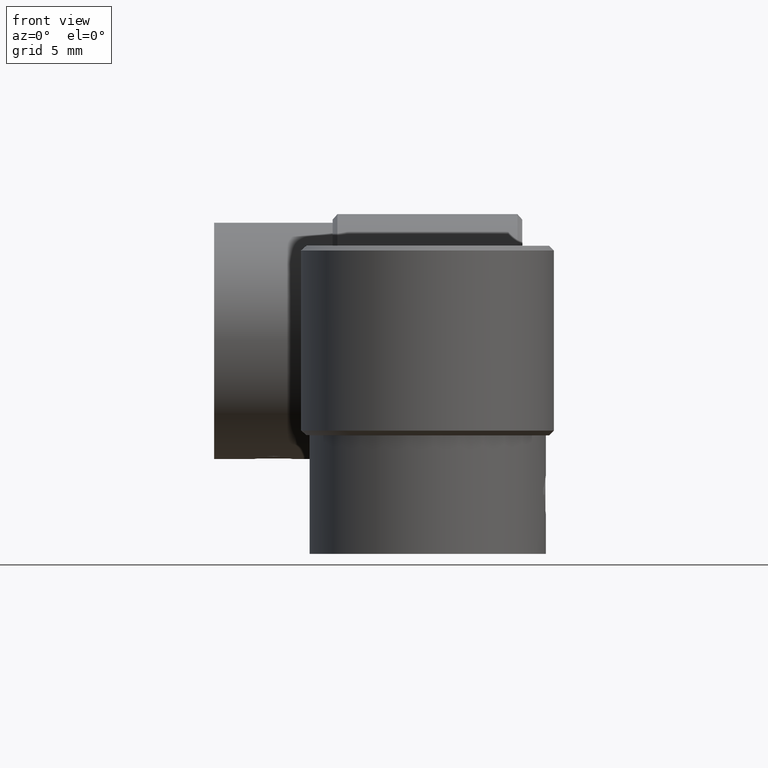
[diagram: clean part render]
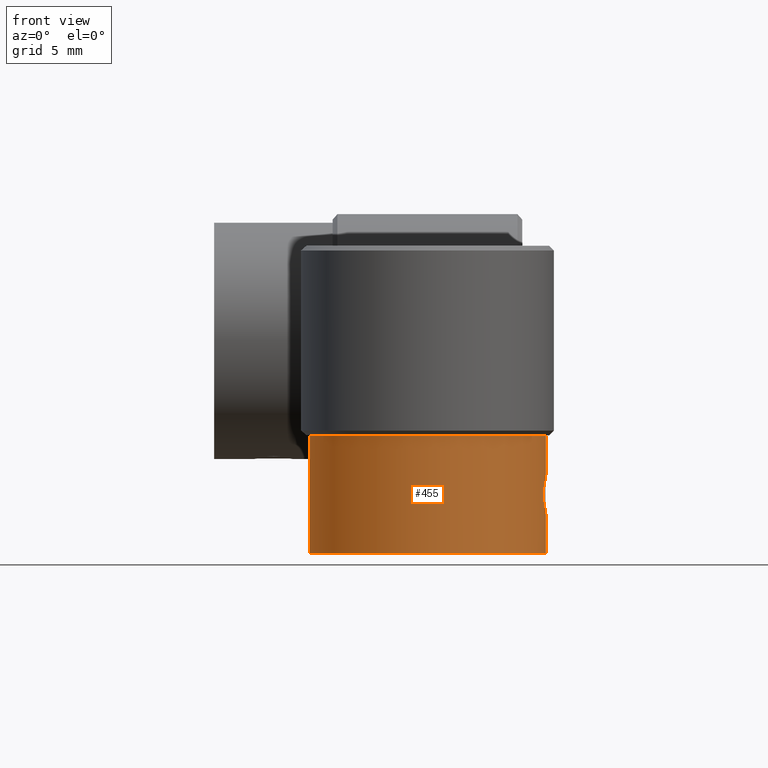
[diagram: same view with one face highlighted and labeled with its STEP entity id]
A machine part, front view. The second image highlights one B-rep face of the part: STEP entity #455.
In plain terms, the highlighted cylindrical surface (bore or boss wall) has radius 7.5 mm, axis along (-0, 0, -1).
Its self-contained STEP definition (entity closure, byte-faithful):
#455 = ADVANCED_FACE( '', ( #550, #551, #552, #553 ), #554, .T. );
#550 = FACE_BOUND( '', #794, .T. );
#551 = FACE_OUTER_BOUND( '', #795, .T. );
#552 = FACE_OUTER_BOUND( '', #796, .T. );
#553 = FACE_BOUND( '', #797, .T. );
#554 = CYLINDRICAL_SURFACE( '', #798, 7.50000000000000 );
#794 = EDGE_LOOP( '', ( #1038 ) );
#795 = EDGE_LOOP( '', ( #1039 ) );
#796 = EDGE_LOOP( '', ( #1040 ) );
#797 = EDGE_LOOP( '', ( #1041 ) );
#798 = AXIS2_PLACEMENT_3D( '', #1042, #1043, #1044 );
#1038 = ORIENTED_EDGE( '', *, *, #1570, .F. );
#1039 = ORIENTED_EDGE( '', *, *, #1571, .T. );
#1040 = ORIENTED_EDGE( '', *, *, #1572, .F. );
#1041 = ORIENTED_EDGE( '', *, *, #1573, .F. );
#1042 = CARTESIAN_POINT( '', ( 0.000000000000000, 0.000000000000000, -19.5000000000000 ) );
#1043 = DIRECTION( '', ( -0.000000000000000, 0.000000000000000, -1.00000000000000 ) );
#1044 = DIRECTION( '', ( 1.00000000000000, 0.000000000000000, 0.000000000000000 ) );
#1570 = EDGE_CURVE( '', #1706, #1706, #1707, .T. );
#1571 = EDGE_CURVE( '', #1708, #1708, #1709, .T. );
#1572 = EDGE_CURVE( '', #1710, #1710, #1711, .T. );
#1573 = EDGE_CURVE( '', #1712, #1712, #1713, .T. );
#1706 = VERTEX_POINT( '', #1946 );
#1707 = B_SPLINE_CURVE_WITH_KNOTS( '', 3, ( #1947, #1948, #1949, #1950, #1951, #1952, #1953, #1954, #1955, #1956, #1957, #1958, #1959, #1960, #1961, #1962, #1963, #1964, #1965, #1966, #1967, #1968, #1969, #1970, #1971, #1972, #1973, #1974, #1975, #1976, #1977, #1978, #1979, #1980, #1981, #1982, #1983, #1984, #1985, #1986 ), .UNSPECIFIED., .T., .F., ( 2, 2, 2, 2, 2, 2, 2, 2, 2, 2, 2, 2, 2, 2, 2, 2, 2, 2, 2, 2, 2, 2 ), ( -0.000489302021298097, 0.000000000000000, 0.000489302021298077, 0.000978604042596154, 0.00146790606389423, 0.00195720808519231, 0.00220185909584135, 0.00244651010649040, 0.00293581212778849, 0.00342511414908658, 0.00366976515973563, 0.00391441617038467, 0.00440371819168276, 0.00489302021298085, 0.00513767122362990, 0.00538232223427894, 0.00587162425557704, 0.00636092627687514, 0.00685022829817323, 0.00733953031947133, 0.00782883234076942, 0.00831813436206750 ), .UNSPECIFIED. );
#1708 = VERTEX_POINT( '', #1987 );
#1709 = CIRCLE( '', #1988, 7.50000000000000 );
#1710 = VERTEX_POINT( '', #1989 );
#1711 = CIRCLE( '', #1990, 7.50000000000000 );
#1712 = VERTEX_POINT( '', #1991 );
#1713 = B_SPLINE_CURVE_WITH_KNOTS( '', 3, ( #1992, #1993, #1994, #1995, #1996, #1997, #1998, #1999, #2000, #2001, #2002, #2003, #2004, #2005, #2006, #2007, #2008, #2009, #2010, #2011, #2012, #2013, #2014, #2015, #2016, #2017, #2018, #2019, #2020, #2021, #2022, #2023, #2024, #2025, #2026, #2027, #2028, #2029, #2030, #2031 ), .UNSPECIFIED., .T., .F., ( 2, 2, 2, 2, 2, 2, 2, 2, 2, 2, 2, 2, 2, 2, 2, 2, 2, 2, 2, 2, 2, 2 ), ( -0.000489302021298095, 0.000000000000000, 0.000489302021298077, 0.000978604042596154, 0.00146790606389423, 0.00195720808519231, 0.00220185909584135, 0.00244651010649040, 0.00293581212778849, 0.00342511414908658, 0.00366976515973563, 0.00391441617038467, 0.00440371819168276, 0.00489302021298085, 0.00513767122362990, 0.00538232223427895, 0.00587162425557704, 0.00636092627687514, 0.00685022829817323, 0.00733953031947133, 0.00782883234076942, 0.00831813436206750 ), .UNSPECIFIED. );
#1946 = CARTESIAN_POINT( '', ( 7.50000000000000, 0.000000000000000, -17.0000000000000 ) );
#1947 = CARTESIAN_POINT( '', ( 7.50000000000000, -0.165471002411745, -17.0000000000000 ) );
#1948 = CARTESIAN_POINT( '', ( 7.50000000000000, 0.165471002411738, -17.0000000000000 ) );
#1949 = CARTESIAN_POINT( '', ( 7.49436587259841, 0.327822877052119, -16.9673203877362 ) );
#1950 = CARTESIAN_POINT( '', ( 7.47499408889453, 0.630437183292843, -16.8417351890631 ) );
#1951 = CARTESIAN_POINT( '', ( 7.46137959538567, 0.768923366152038, -16.7488732637799 ) );
#1952 = CARTESIAN_POINT( '', ( 7.43406245192421, 0.999071604212078, -16.5186656423738 ) );
#1953 = CARTESIAN_POINT( '', ( 7.42032282697623, 1.09215189736863, -16.3794430164726 ) );
#1954 = CARTESIAN_POINT( '', ( 7.40088355685846, 1.21692612811639, -16.0787629489765 ) );
#1955 = CARTESIAN_POINT( '', ( 7.39511565119118, 1.24990580228831, -15.9140740992598 ) );
#1956 = CARTESIAN_POINT( '', ( 7.39509182017804, 1.25004678848734, -15.6690417839070 ) );
#1957 = CARTESIAN_POINT( '', ( 7.39648230309377, 1.24189844375602, -15.5860568235599 ) );
#1958 = CARTESIAN_POINT( '', ( 7.40177591672321, 1.20994854568251, -15.4256334997172 ) );
#1959 = CARTESIAN_POINT( '', ( 7.40565147655992, 1.18631091698015, -15.3476457149932 ) );
#1960 = CARTESIAN_POINT( '', ( 7.42031440706172, 1.09222874730219, -15.1203758158990 ) );
#1961 = CARTESIAN_POINT( '', ( 7.43388981970788, 1.00050573164341, -14.9828089361980 ) );
#1962 = CARTESIAN_POINT( '', ( 7.46151613262258, 0.767793314128595, -14.7499563638479 ) );
#1963 = CARTESIAN_POINT( '', ( 7.47500786777528, 0.630245830049883, -14.6581738241631 ) );
#1964 = CARTESIAN_POINT( '', ( 7.48952327910877, 0.403458993067745, -14.5640744576293 ) );
#1965 = CARTESIAN_POINT( '', ( 7.49336131727929, 0.325547030130408, -14.5403658356738 ) );
#1966 = CARTESIAN_POINT( '', ( 7.49861286454627, 0.165075157990092, -14.5082488685141 ) );
#1967 = CARTESIAN_POINT( '', ( 7.49999466167963, 0.0821364028068997, -14.5000320299246 ) );
#1968 = CARTESIAN_POINT( '', ( 7.50001062883507, -0.162806089926090, -14.4999362269848 ) );
#1969 = CARTESIAN_POINT( '', ( 7.49436056833620, -0.327567618229545, -14.5327374026968 ) );
#1970 = CARTESIAN_POINT( '', ( 7.47513601436229, -0.628555836444834, -14.6573214856249 ) );
#1971 = CARTESIAN_POINT( '', ( 7.46150517281469, -0.767742407821257, -14.7501877321613 ) );
#1972 = CARTESIAN_POINT( '', ( 7.44099367669357, -0.940736448524842, -14.9228644740196 ) );
#1973 = CARTESIAN_POINT( '', ( 7.43404587231065, -0.993507405459025, -14.9870544308235 ) );
#1974 = CARTESIAN_POINT( '', ( 7.42136620334262, -1.08416727132152, -15.1225255112570 ) );
#1975 = CARTESIAN_POINT( '', ( 7.41557064435726, -1.12264349698931, -15.1942124341210 ) );
#1976 = CARTESIAN_POINT( '', ( 7.40085249445047, -1.21714747115048, -15.4214197322658 ) );
#1977 = CARTESIAN_POINT( '', ( 7.39512225717927, -1.24986672070741, -15.5838012702191 ) );
#1978 = CARTESIAN_POINT( '', ( 7.39507733727243, -1.25013247054857, -15.9141878296124 ) );
#1979 = CARTESIAN_POINT( '', ( 7.40078559021607, -1.21753257380033, -16.0769422062363 ) );
#1980 = CARTESIAN_POINT( '', ( 7.42029565226344, -1.09234854950928, -16.3793261641378 ) );
#1981 = CARTESIAN_POINT( '', ( 7.43400253385627, -0.999501875720797, -16.5180880340347 ) );
#1982 = CARTESIAN_POINT( '', ( 7.46130559939351, -0.769620962168996, -16.7483219932400 ) );
#1983 = CARTESIAN_POINT( '', ( 7.47497323600726, -0.630445217544101, -16.8415778429106 ) );
#1984 = CARTESIAN_POINT( '', ( 7.49425788807339, -0.329825345294824, -16.9666423472240 ) );
#1985 = CARTESIAN_POINT( '', ( 7.50000000000000, -0.165471002411745, -17.0000000000000 ) );
#1986 = CARTESIAN_POINT( '', ( 7.50000000000000, 0.165471002411738, -17.0000000000000 ) );
#1987 = CARTESIAN_POINT( '', ( 7.50000000000000, 0.000000000000000, -19.5000000000000 ) );
#1988 = AXIS2_PLACEMENT_3D( '', #2570, #2571, #2572 );
#1989 = CARTESIAN_POINT( '', ( 7.50000000000000, 0.000000000000000, -12.0000000000000 ) );
#1990 = AXIS2_PLACEMENT_3D( '', #2573, #2574, #2575 );
#1991 = CARTESIAN_POINT( '', ( 4.59242549680257E-016, 7.50000000000000, -17.0000000000000 ) );
#1992 = CARTESIAN_POINT( '', ( 0.165471002411745, 7.50000000000000, -17.0000000000000 ) );
#1993 = CARTESIAN_POINT( '', ( -0.165471002411738, 7.50000000000000, -17.0000000000000 ) );
#1994 = CARTESIAN_POINT( '', ( -0.327822877052119, 7.49436587259841, -16.9673203877362 ) );
#1995 = CARTESIAN_POINT( '', ( -0.630437183292842, 7.47499408889453, -16.8417351890631 ) );
#1996 = CARTESIAN_POINT( '', ( -0.768923366152038, 7.46137959538567, -16.7488732637799 ) );
#1997 = CARTESIAN_POINT( '', ( -0.999071604212077, 7.43406245192421, -16.5186656423739 ) );
#1998 = CARTESIAN_POINT( '', ( -1.09215189736863, 7.42032282697622, -16.3794430164726 ) );
#1999 = CARTESIAN_POINT( '', ( -1.21692612811639, 7.40088355685846, -16.0787629489765 ) );
#2000 = CARTESIAN_POINT( '', ( -1.24990580228831, 7.39511565119118, -15.9140740992598 ) );
#2001 = CARTESIAN_POINT( '', ( -1.25004678848734, 7.39509182017804, -15.6690417839070 ) );
#2002 = CARTESIAN_POINT( '', ( -1.24189844375602, 7.39648230309377, -15.5860568235599 ) );
#2003 = CARTESIAN_POINT( '', ( -1.20994854568251, 7.40177591672322, -15.4256334997172 ) );
#2004 = CARTESIAN_POINT( '', ( -1.18631091698015, 7.40565147655991, -15.3476457149932 ) );
#2005 = CARTESIAN_POINT( '', ( -1.09222874730219, 7.42031440706172, -15.1203758158990 ) );
#2006 = CARTESIAN_POINT( '', ( -1.00050573164340, 7.43388981970787, -14.9828089361980 ) );
#2007 = CARTESIAN_POINT( '', ( -0.767793314128594, 7.46151613262259, -14.7499563638479 ) );
#2008 = CARTESIAN_POINT( '', ( -0.630245830049883, 7.47500786777528, -14.6581738241631 ) );
#2009 = CARTESIAN_POINT( '', ( -0.403458993067745, 7.48952327910877, -14.5640744576293 ) );
#2010 = CARTESIAN_POINT( '', ( -0.325547030130408, 7.49336131727928, -14.5403658356738 ) );
#2011 = CARTESIAN_POINT( '', ( -0.165075157990092, 7.49861286454627, -14.5082488685141 ) );
#2012 = CARTESIAN_POINT( '', ( -0.0821364028068991, 7.49999466167963, -14.5000320299246 ) );
#2013 = CARTESIAN_POINT( '', ( 0.162806089926091, 7.50001062883507, -14.4999362269848 ) );
#2014 = CARTESIAN_POINT( '', ( 0.327567618229544, 7.49436056833620, -14.5327374026968 ) );
#2015 = CARTESIAN_POINT( '', ( 0.628555836444834, 7.47513601436229, -14.6573214856249 ) );
#2016 = CARTESIAN_POINT( '', ( 0.767742407821259, 7.46150517281470, -14.7501877321613 ) );
#2017 = CARTESIAN_POINT( '', ( 0.940736448524842, 7.44099367669357, -14.9228644740196 ) );
#2018 = CARTESIAN_POINT( '', ( 0.993507405459025, 7.43404587231064, -14.9870544308235 ) );
#2019 = CARTESIAN_POINT( '', ( 1.08416727132152, 7.42136620334262, -15.1225255112570 ) );
#2020 = CARTESIAN_POINT( '', ( 1.12264349698931, 7.41557064435725, -15.1942124341210 ) );
#2021 = CARTESIAN_POINT( '', ( 1.21714747115048, 7.40085249445047, -15.4214197322658 ) );
#2022 = CARTESIAN_POINT( '', ( 1.24986672070741, 7.39512225717928, -15.5838012702191 ) );
#2023 = CARTESIAN_POINT( '', ( 1.25013247054857, 7.39507733727243, -15.9141878296124 ) );
#2024 = CARTESIAN_POINT( '', ( 1.21753257380033, 7.40078559021607, -16.0769422062363 ) );
#2025 = CARTESIAN_POINT( '', ( 1.09234854950928, 7.42029565226344, -16.3793261641378 ) );
#2026 = CARTESIAN_POINT( '', ( 0.999501875720797, 7.43400253385627, -16.5180880340347 ) );
#2027 = CARTESIAN_POINT( '', ( 0.769620962168996, 7.46130559939350, -16.7483219932400 ) );
#2028 = CARTESIAN_POINT( '', ( 0.630445217544101, 7.47497323600726, -16.8415778429106 ) );
#2029 = CARTESIAN_POINT( '', ( 0.329825345294824, 7.49425788807339, -16.9666423472240 ) );
#2030 = CARTESIAN_POINT( '', ( 0.165471002411745, 7.50000000000000, -17.0000000000000 ) );
#2031 = CARTESIAN_POINT( '', ( -0.165471002411738, 7.50000000000000, -17.0000000000000 ) );
#2570 = CARTESIAN_POINT( '', ( 0.000000000000000, 0.000000000000000, -19.5000000000000 ) );
#2571 = DIRECTION( '', ( 0.000000000000000, 0.000000000000000, 1.00000000000000 ) );
#2572 = DIRECTION( '', ( 1.00000000000000, 0.000000000000000, 0.000000000000000 ) );
#2573 = CARTESIAN_POINT( '', ( 0.000000000000000, 0.000000000000000, -12.0000000000000 ) );
#2574 = DIRECTION( '', ( 0.000000000000000, 0.000000000000000, 1.00000000000000 ) );
#2575 = DIRECTION( '', ( 1.00000000000000, 0.000000000000000, 0.000000000000000 ) );